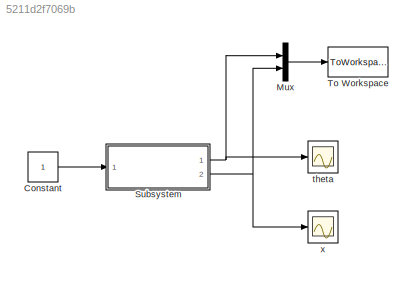
MODEL slx_5211d2f7069b
KIND model
CONFIG AbsTol = auto
CONFIG EnableMultiTasking = off
CONFIG FixedStep = 0.01
CONFIG MaxStep = auto
CONFIG MinStep = auto
CONFIG RelTol = 1e-3
CONFIG SampleTimeConstraint = Unconstrained
CONFIG Solver = ode4
CONFIG SolverName = ode4
CONFIG StartTime = 0.0
CONFIG StopTime = 0.5
BLOCK [Constant] Constant
BLOCK [Mux] Mux
  DisplayOption = bar
  Inputs = 2
  Ports = [2, 1]
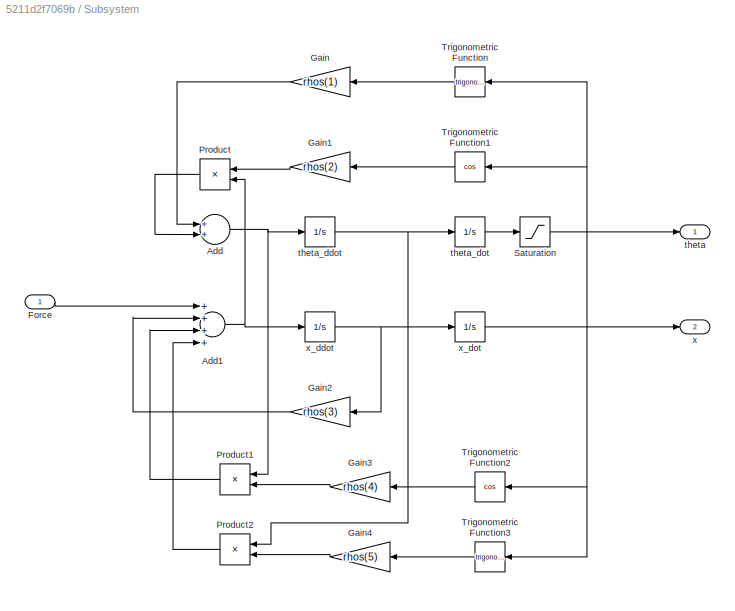
BLOCK [SubSystem] Subsystem
  Ports = [1, 2]
  RequestExecContextInheritance = off
  Variant = off
BLOCK [Sum] Subsystem/Add
  InputSameDT = off
  OutDataTypeStr = Inherit: Inherit via internal rule
  Ports = [2, 1]
  SaturateOnIntegerOverflow = off
BLOCK [Sum] Subsystem/Add1
  InputSameDT = off
  Inputs = ++++
  OutDataTypeStr = Inherit: Inherit via internal rule
  Ports = [4, 1]
  SaturateOnIntegerOverflow = off
BLOCK [Inport] Subsystem/Force
  IconDisplay = Port number
BLOCK [Gain] Subsystem/Gain
  Gain = rhos(1)
  OutDataTypeStr = Inherit: Inherit via internal rule
  ParamDataTypeStr = Inherit: Inherit via internal rule
  SaturateOnIntegerOverflow = off
BLOCK [Gain] Subsystem/Gain1
  Gain = rhos(2)
  OutDataTypeStr = Inherit: Inherit via internal rule
  ParamDataTypeStr = Inherit: Inherit via internal rule
  SaturateOnIntegerOverflow = off
BLOCK [Gain] Subsystem/Gain2
  Gain = rhos(3)
  OutDataTypeStr = Inherit: Inherit via internal rule
  ParamDataTypeStr = Inherit: Inherit via internal rule
  SaturateOnIntegerOverflow = off
BLOCK [Gain] Subsystem/Gain3
  Gain = rhos(4)
  OutDataTypeStr = Inherit: Inherit via internal rule
  ParamDataTypeStr = Inherit: Inherit via internal rule
  SaturateOnIntegerOverflow = off
BLOCK [Gain] Subsystem/Gain4
  Gain = rhos(5)
  OutDataTypeStr = Inherit: Inherit via internal rule
  ParamDataTypeStr = Inherit: Inherit via internal rule
  SaturateOnIntegerOverflow = off
BLOCK [Product] Subsystem/Product
  InputSameDT = off
  OutDataTypeStr = Inherit: Inherit via internal rule
  Ports = [2, 1]
  RndMeth = Floor
  SaturateOnIntegerOverflow = off
BLOCK [Product] Subsystem/Product1
  InputSameDT = off
  OutDataTypeStr = Inherit: Inherit via internal rule
  Ports = [2, 1]
  RndMeth = Floor
  SaturateOnIntegerOverflow = off
BLOCK [Product] Subsystem/Product2
  InputSameDT = off
  OutDataTypeStr = Inherit: Inherit via internal rule
  Ports = [2, 1]
  RndMeth = Floor
  SaturateOnIntegerOverflow = off
BLOCK [Saturate] Subsystem/Saturation
  InputPortMap = u0
  LowerLimit = -pi/2
  Ports = [1, 1]
  UpperLimit = pi/2
BLOCK [Trigonometry] Subsystem/Trigonometric Function
  Ports = [1, 1]
BLOCK [Trigonometry] Subsystem/Trigonometric Function1
  Operator = cos
  Ports = [1, 1]
BLOCK [Trigonometry] Subsystem/Trigonometric Function2
  Operator = cos
  Ports = [1, 1]
BLOCK [Trigonometry] Subsystem/Trigonometric Function3
  Ports = [1, 1]
BLOCK [Outport] Subsystem/theta
  IconDisplay = Port number
BLOCK [Integrator] Subsystem/theta_ddot
  Ports = [1, 1]
BLOCK [Integrator] Subsystem/theta_dot
  Ports = [1, 1]
BLOCK [Outport] Subsystem/x
  IconDisplay = Port number
  Port = 2
BLOCK [Integrator] Subsystem/x_ddot
  Ports = [1, 1]
BLOCK [Integrator] Subsystem/x_dot
  Ports = [1, 1]
BLOCK [ToWorkspace] To Workspace
  FixptAsFi = on
  MaxDataPoints = inf
  Ports = [1]
  SampleTime = -1
  Save2DSignal = 3-D array (concatenate along third dimension)
  SaveFormat = Timeseries
  VariableName = simout
BLOCK [Scope] theta
  NumInputPorts = 1
  Ports = [1]
  ScopeSpecificationString = Simulink.scopes.TimeScopeBlockCfg('CurrentConfiguration', extmgr.ConfigurationSet(extmgr.Configuration('Core','General UI',true),extmgr.Configuration('Core','Source UI',true),extmgr.Configuration('Sources','WiredSimulink',true),extmgr.Configuration('Visuals','Time Domain',true,'SerializedDisplays',{struct('MinYLimReal','-0.06446','MaxYLimReal','0.58011','YLabelReal','','MinYLimMag','0.00000','MaxY...<+1331ch>
BLOCK [Scope] x
  NumInputPorts = 1
  Ports = [1]
  ScopeSpecificationString = Simulink.scopes.TimeScopeBlockCfg('CurrentConfiguration', extmgr.ConfigurationSet(extmgr.Configuration('Core','General UI',true),extmgr.Configuration('Core','Source UI',true),extmgr.Configuration('Sources','WiredSimulink',true,'DataLoggingVariableName','ScopeData1'),extmgr.Configuration('Visuals','Time Domain',true,'SerializedDisplays',{struct('MinYLimReal','-0.0124','MaxYLimReal','0.00138','YLabe...<+1366ch>
LINE Constant:1 -> Subsystem:1
LINE Mux:1 -> To Workspace:1
NET Subsystem/Add1:1 -> Subsystem/Product:2, Subsystem/x_ddot:1
NET Subsystem/Add:1 -> Subsystem/Product1:1, Subsystem/theta_ddot:1
LINE Subsystem/Force:1 -> Subsystem/Add1:1
LINE Subsystem/Gain1:1 -> Subsystem/Product:1
LINE Subsystem/Gain2:1 -> Subsystem/Add1:2
LINE Subsystem/Gain3:1 -> Subsystem/Product1:2
LINE Subsystem/Gain4:1 -> Subsystem/Product2:2
LINE Subsystem/Gain:1 -> Subsystem/Add:1
LINE Subsystem/Product1:1 -> Subsystem/Add1:3
LINE Subsystem/Product2:1 -> Subsystem/Add1:4
LINE Subsystem/Product:1 -> Subsystem/Add:2
NET Subsystem/Saturation:1 -> Subsystem/Trigonometric Function1:1, Subsystem/Trigonometric Function2:1, Subsystem/Trigonometric Function3:1, Subsystem/Trigonometric Function:1, Subsystem/theta:1
LINE Subsystem/Trigonometric Function1:1 -> Subsystem/Gain1:1
LINE Subsystem/Trigonometric Function2:1 -> Subsystem/Gain3:1
LINE Subsystem/Trigonometric Function3:1 -> Subsystem/Gain4:1
LINE Subsystem/Trigonometric Function:1 -> Subsystem/Gain:1
NET Subsystem/theta_ddot:1 -> Subsystem/Product2:1, Subsystem/theta_dot:1
LINE Subsystem/theta_dot:1 -> Subsystem/Saturation:1
NET Subsystem/x_ddot:1 -> Subsystem/Gain2:1, Subsystem/x_dot:1
LINE Subsystem/x_dot:1 -> Subsystem/x:1
NET Subsystem:1 -> Mux:1, theta:1
NET Subsystem:2 -> Mux:2, x:1
note: NET lines group one-source signal fan-out (src -> all destinations, sorted); 1:1 wires keep LINE
